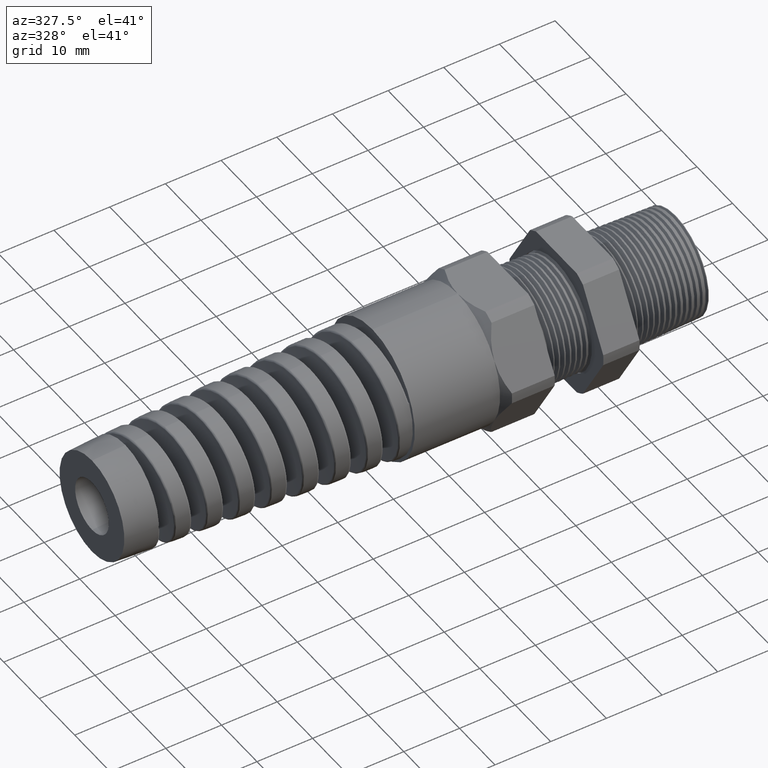
[diagram: clean part render]
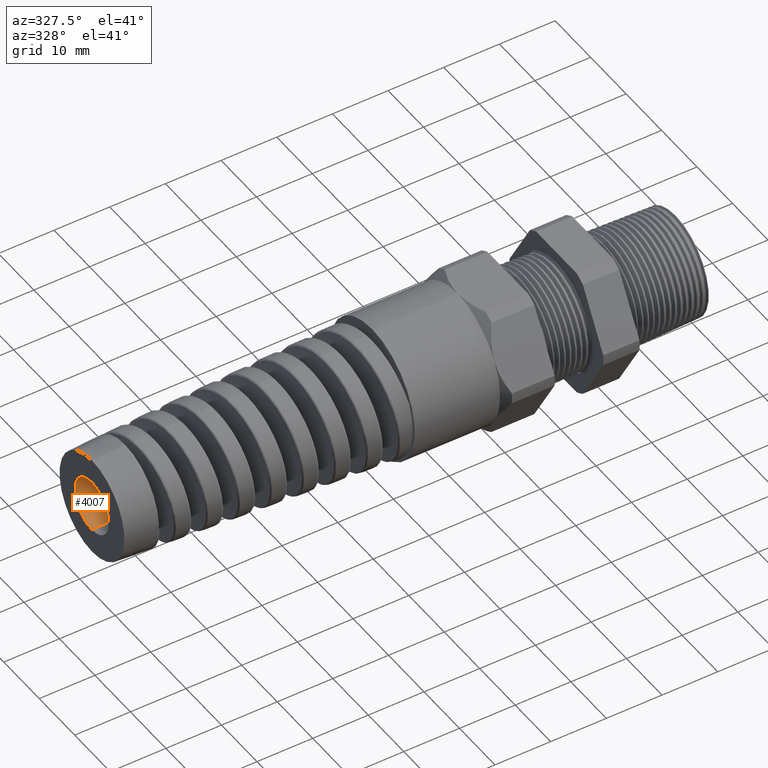
[diagram: same view with one face highlighted and labeled with its STEP entity id]
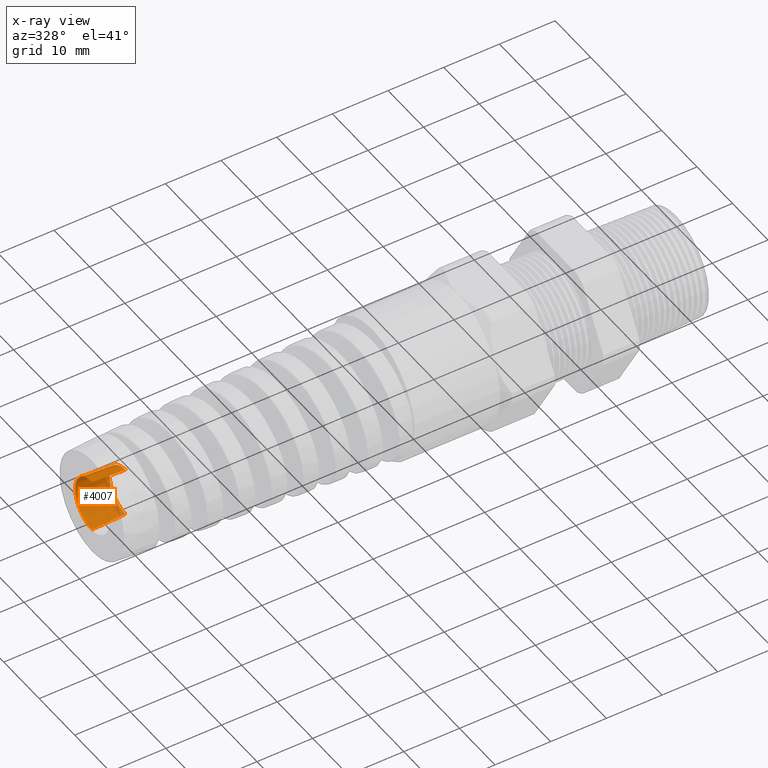
[diagram: x-ray of the same camera — body ghosted, the highlighted face saturated]
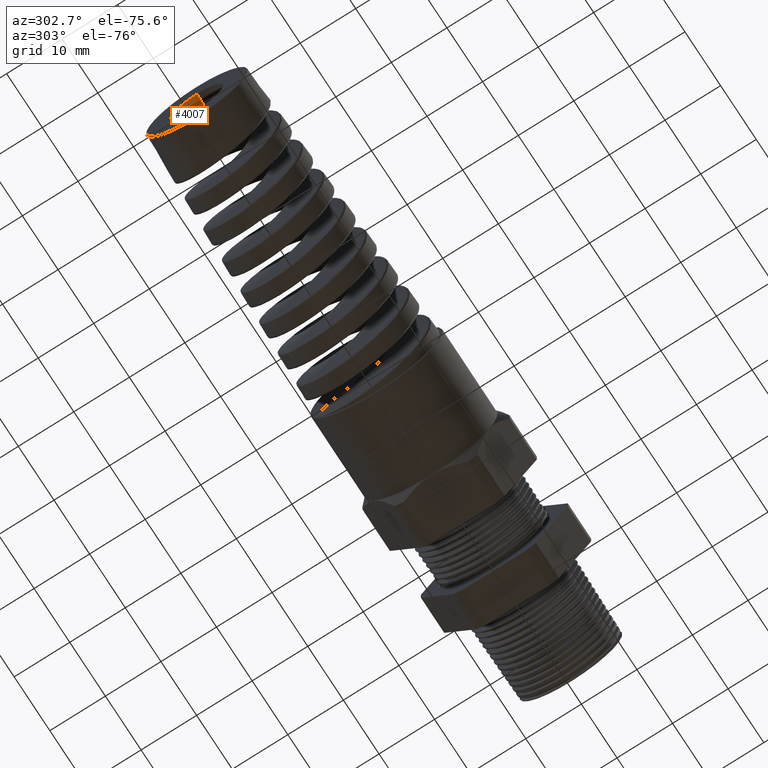
[diagram: same view with one face highlighted and labeled with its STEP entity id]
A machine part, auxiliary view. The second image highlights one B-rep face of the part: STEP entity #4007.
The next image is the same camera in x-ray: the body ghosted, the highlighted face saturated — about 11% of this face is hidden behind the body in this view.
A second angle (auxiliary view) of the same face is appended — the face is thin or edge-on in the first view.
In plain terms, the highlighted conical surface has half-angle 3 deg.
Its self-contained STEP definition (entity closure, byte-faithful):
#2448 = DIRECTION ( 'NONE',  ( -0.9986295347545738300, 6.409306129323724800E-018, -0.05233595624294395300 ) ) ;
#2449 = VECTOR ( 'NONE', #2448, 39.37007874015748900 ) ;
#2450 = CARTESIAN_POINT ( 'NONE',  ( -3.613780000000000200, 2.143131898504243200E-017, -0.1749999999997039800 ) ) ;
#2451 = LINE ( 'NONE', #2450, #2449 ) ;
#2455 = DIRECTION ( 'NONE',  ( -0.9986295347545738300, 0.0000000000000000000, 0.05233595624294395300 ) ) ;
#2456 = VECTOR ( 'NONE', #2455, 39.37007874015748900 ) ;
#2457 = CARTESIAN_POINT ( 'NONE',  ( -3.613780000000000200, 0.0000000000000000000, 0.1749999999997039800 ) ) ;
#2458 = LINE ( 'NONE', #2457, #2456 ) ;
#2459 = CARTESIAN_POINT ( 'NONE',  ( -3.613780000000000200, 0.0000000000000000000, 0.1749999999997039800 ) ) ;
#2460 = CARTESIAN_POINT ( 'NONE',  ( -3.850000472440945600, 2.294740605156363600E-017, -0.1873797903815248000 ) ) ;
#2461 = CARTESIAN_POINT ( 'NONE',  ( -3.850000472440945600, 0.0000000000000000000, 0.1873797903815248000 ) ) ;
#3996 = EDGE_LOOP ( 'NONE', ( #4012, #4013, #4129, #4081, #4080 ) ) ;
#4007 = ADVANCED_FACE ( 'NONE', ( #10348 ), #10347, .F. ) ;
#4012 = ORIENTED_EDGE ( 'NONE', *, *, #7679, .F. ) ;
#4013 = ORIENTED_EDGE ( 'NONE', *, *, #4697, .T. ) ;
#4016 = EDGE_CURVE ( 'NONE', #7671, #7672, #10438, .T. ) ;
#4080 = ORIENTED_EDGE ( 'NONE', *, *, #4016, .T. ) ;
#4081 = ORIENTED_EDGE ( 'NONE', *, *, #7674, .T. ) ;
#4124 = EDGE_CURVE ( 'NONE', #7673, #4640, #10465, .T. ) ;
#4129 = ORIENTED_EDGE ( 'NONE', *, *, #4124, .F. ) ;
#4640 = VERTEX_POINT ( 'NONE', #15145 ) ;
#4697 = EDGE_CURVE ( 'NONE', #4698, #4640, #15483, .T. ) ;
#4698 = VERTEX_POINT ( 'NONE', #15478 ) ;
#7671 = VERTEX_POINT ( 'NONE', #2461 ) ;
#7672 = VERTEX_POINT ( 'NONE', #2460 ) ;
#7673 = VERTEX_POINT ( 'NONE', #2459 ) ;
#7674 = EDGE_CURVE ( 'NONE', #7673, #7671, #2458, .T. ) ;
#7679 = EDGE_CURVE ( 'NONE', #4698, #7672, #2451, .T. ) ;
#10347 = CONICAL_SURFACE ( 'NONE', #10390, 0.1749999999997039800, 0.05235987755983000100 ) ;
#10348 = FACE_OUTER_BOUND ( 'NONE', #3996, .T. ) ;
#10381 = DIRECTION ( 'NONE',  ( 0.0000000000000000000, 0.0000000000000000000, 1.000000000000000000 ) ) ;
#10390 = AXIS2_PLACEMENT_3D ( 'NONE', #10392, #10391, #10381 ) ;
#10391 = DIRECTION ( 'NONE',  ( -1.000000000000000000, 0.0000000000000000000, 0.0000000000000000000 ) ) ;
#10392 = CARTESIAN_POINT ( 'NONE',  ( -3.613780000000000200, 0.0000000000000000000, 0.0000000000000000000 ) ) ;
#10430 = DIRECTION ( 'NONE',  ( 0.0000000000000000000, 0.0000000000000000000, 1.000000000000000000 ) ) ;
#10431 = DIRECTION ( 'NONE',  ( -1.000000000000000000, 0.0000000000000000000, 0.0000000000000000000 ) ) ;
#10432 = CARTESIAN_POINT ( 'NONE',  ( -3.850000472440945600, 0.0000000000000000000, 0.0000000000000000000 ) ) ;
#10433 = AXIS2_PLACEMENT_3D ( 'NONE', #10432, #10431, #10430 ) ;
#10438 = CIRCLE ( 'NONE', #10433, 0.1873797903815248000 ) ;
#10461 = DIRECTION ( 'NONE',  ( 0.0000000000000000000, 0.0000000000000000000, 1.000000000000000000 ) ) ;
#10462 = DIRECTION ( 'NONE',  ( -1.000000000000000000, 0.0000000000000000000, 0.0000000000000000000 ) ) ;
#10463 = CARTESIAN_POINT ( 'NONE',  ( -3.613780000000000200, 0.0000000000000000000, 0.0000000000000000000 ) ) ;
#10464 = AXIS2_PLACEMENT_3D ( 'NONE', #10463, #10462, #10461 ) ;
#10465 = CIRCLE ( 'NONE', #10464, 0.1749999999997039800 ) ;
#15145 = CARTESIAN_POINT ( 'NONE',  ( -3.613780000000000200, 0.1452156726140069500, 0.09765965608764935700 ) ) ;
#15478 = CARTESIAN_POINT ( 'NONE',  ( -3.613780000000000200, 2.218936251832177900E-017, -0.1749999999999997100 ) ) ;
#15479 = DIRECTION ( 'NONE',  ( 0.0000000000000000000, 0.0000000000000000000, -1.000000000000000000 ) ) ;
#15480 = DIRECTION ( 'NONE',  ( 1.000000000000000000, 0.0000000000000000000, 0.0000000000000000000 ) ) ;
#15481 = CARTESIAN_POINT ( 'NONE',  ( -3.613780000000000200, 0.0000000000000000000, 0.0000000000000000000 ) ) ;
#15482 = AXIS2_PLACEMENT_3D ( 'NONE', #15481, #15480, #15479 ) ;
#15483 = CIRCLE ( 'NONE', #15482, 0.1749999999999997100 ) ;